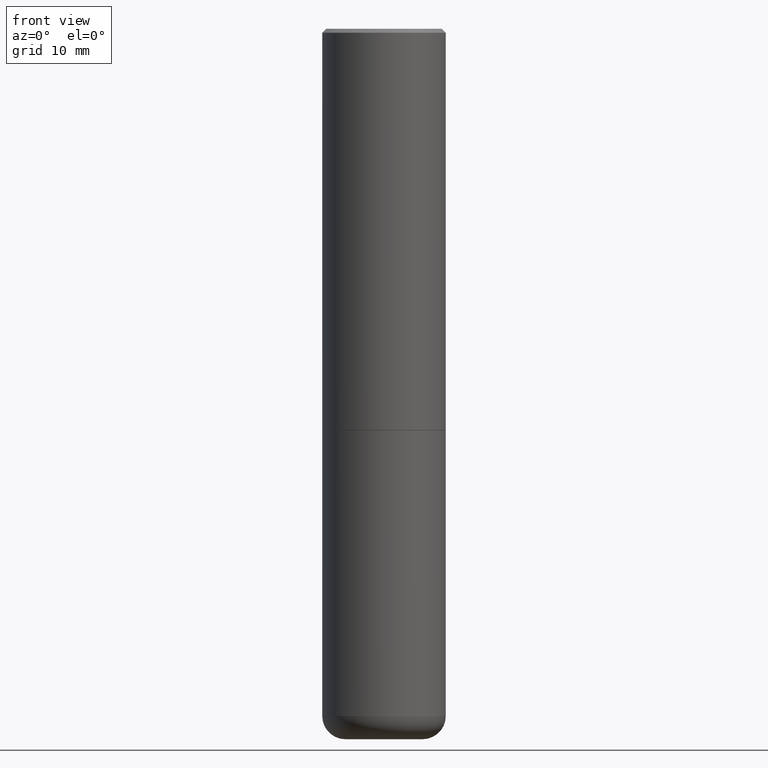
[diagram: clean part render]
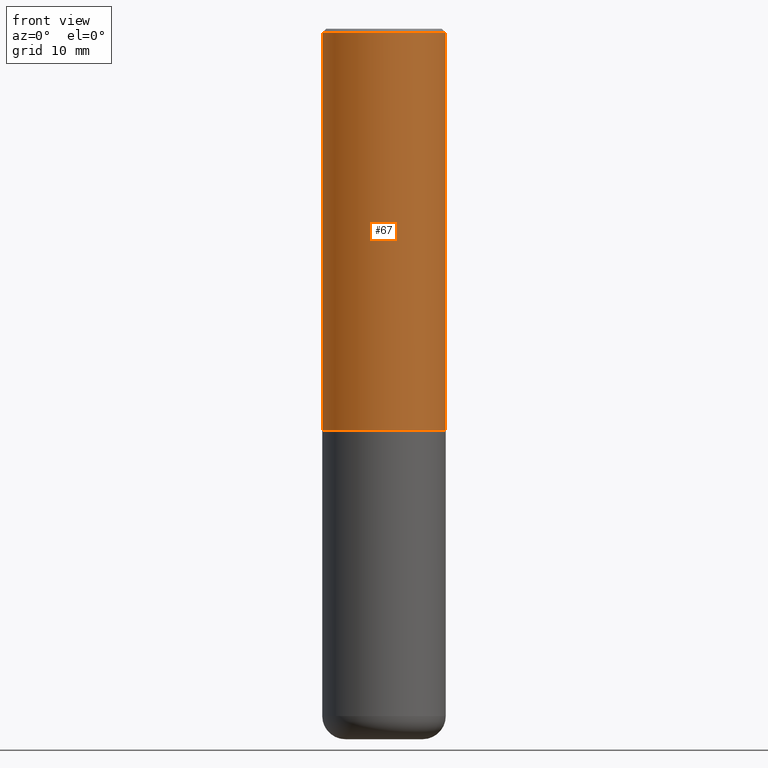
[diagram: same view with one face highlighted and labeled with its STEP entity id]
A machine part, front view. The second image highlights one B-rep face of the part: STEP entity #67.
In plain terms, the highlighted cylindrical surface (partial cylindrical patch) has radius 7.9997 mm, axis along (-0, 0, 1).
Its self-contained STEP definition (entity closure, byte-faithful):
#11 = ORIENTED_EDGE ( 'NONE', *, *, #256, .T. ) ;
#18 = DIRECTION ( 'NONE',  ( 1.000000000000000000, -6.982962677686265922E-15, 4.876176775795935232E-29 ) ) ;
#25 = LINE ( 'NONE', #27, #52 ) ;
#27 = CARTESIAN_POINT ( 'NONE',  ( 0.3149500000000001743, -2.199284095337290660E-15, 1.535751875536930690E-29 ) ) ;
#46 = DIRECTION ( 'NONE',  ( -2.445468806185136597E-29, 3.491481338843145583E-15, 1.000000000000000000 ) ) ;
#49 = CARTESIAN_POINT ( 'NONE',  ( 4.890937612370289799E-31, -6.982962677686315028E-17, -0.02000000000000006981 ) ) ;
#52 = VECTOR ( 'NONE', #146, 39.37007874015748143 ) ;
#54 = CARTESIAN_POINT ( 'NONE',  ( 0.3149499999999999522, -2.230543471175006661E-15, -0.02000000000000006981 ) ) ;
#67 = ADVANCED_FACE ( 'NONE', ( #143 ), #406, .T. ) ;
#79 = DIRECTION ( 'NONE',  ( 1.000000000000000000, -6.982962677686266711E-15, 0.000000000000000000 ) ) ;
#98 = VERTEX_POINT ( 'NONE', #110 ) ;
#105 = DIRECTION ( 'NONE',  ( 1.000000000000000000, -6.982962677686267499E-15, 0.000000000000000000 ) ) ;
#106 = ORIENTED_EDGE ( 'NONE', *, *, #170, .F. ) ;
#110 = CARTESIAN_POINT ( 'NONE',  ( -0.3149500000000002853, -1.369195024882414317E-15, -2.046199999999999797 ) ) ;
#120 = CARTESIAN_POINT ( 'NONE',  ( 0.3149500000000002853, -9.343553210878135066E-15, -2.046199999999999797 ) ) ;
#131 = DIRECTION ( 'NONE',  ( -2.445468806185136597E-29, 3.491481338843145583E-15, 1.000000000000000000 ) ) ;
#135 = CIRCLE ( 'NONE', #176, 0.3149500000000002853 ) ;
#143 = FACE_OUTER_BOUND ( 'NONE', #182, .T. ) ;
#146 = DIRECTION ( 'NONE',  ( -2.445468806185136877E-29, 3.491481338843145188E-15, 1.000000000000000000 ) ) ;
#162 = CARTESIAN_POINT ( 'NONE',  ( 5.003918271216025517E-29, -7.144269115540843617E-15, -2.046199999999999797 ) ) ;
#170 = EDGE_CURVE ( 'NONE', #98, #228, #198, .T. ) ;
#171 = CARTESIAN_POINT ( 'NONE',  ( 0.000000000000000000, 0.000000000000000000, 0.000000000000000000 ) ) ;
#176 = AXIS2_PLACEMENT_3D ( 'NONE', #162, #131, #105 ) ;
#182 = EDGE_LOOP ( 'NONE', ( #106, #329, #11, #295 ) ) ;
#198 = LINE ( 'NONE', #303, #325 ) ;
#219 = EDGE_CURVE ( 'NONE', #98, #365, #135, .T. ) ;
#225 = AXIS2_PLACEMENT_3D ( 'NONE', #171, #309, #18 ) ;
#228 = VERTEX_POINT ( 'NONE', #269 ) ;
#233 = EDGE_CURVE ( 'NONE', #228, #294, #389, .T. ) ;
#256 = EDGE_CURVE ( 'NONE', #365, #294, #25, .T. ) ;
#269 = CARTESIAN_POINT ( 'NONE',  ( -0.3149499999999999522, 2.129454468560426178E-15, -0.02000000000000006981 ) ) ;
#274 = AXIS2_PLACEMENT_3D ( 'NONE', #49, #46, #79 ) ;
#294 = VERTEX_POINT ( 'NONE', #54 ) ;
#295 = ORIENTED_EDGE ( 'NONE', *, *, #233, .F. ) ;
#303 = CARTESIAN_POINT ( 'NONE',  ( -0.3149500000000001743, 2.237854346276436774E-15, -1.549218606675783237E-29 ) ) ;
#306 = DIRECTION ( 'NONE',  ( -2.445468806185136877E-29, 3.491481338843145188E-15, 1.000000000000000000 ) ) ;
#309 = DIRECTION ( 'NONE',  ( -2.445468806185136597E-29, 3.491481338843145583E-15, 1.000000000000000000 ) ) ;
#325 = VECTOR ( 'NONE', #306, 39.37007874015748143 ) ;
#329 = ORIENTED_EDGE ( 'NONE', *, *, #219, .T. ) ;
#365 = VERTEX_POINT ( 'NONE', #120 ) ;
#389 = CIRCLE ( 'NONE', #274, 0.3149499999999999522 ) ;
#406 = CYLINDRICAL_SURFACE ( 'NONE', #225, 0.3149500000000001743 ) ;